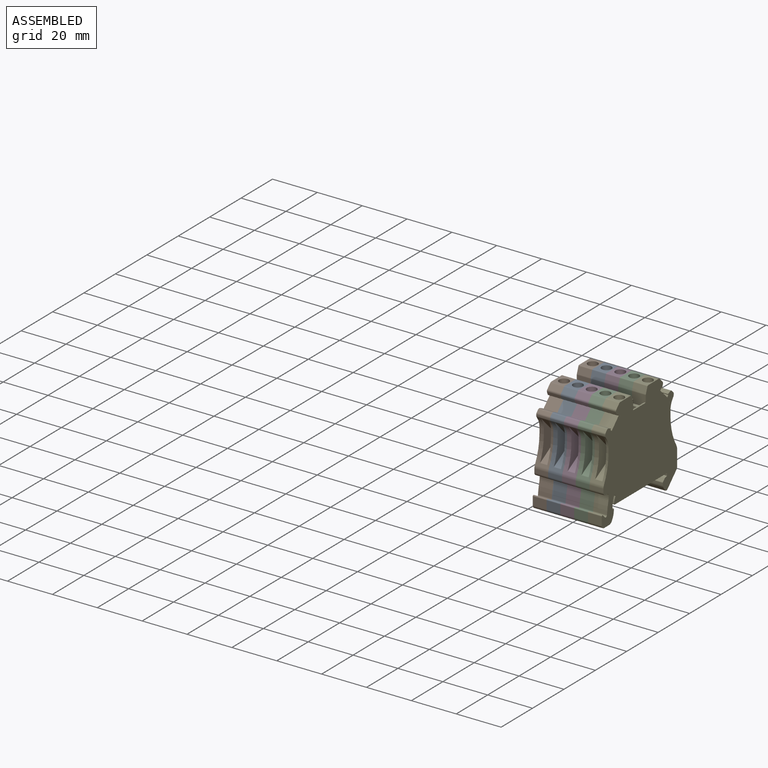
[diagram: assembled view]
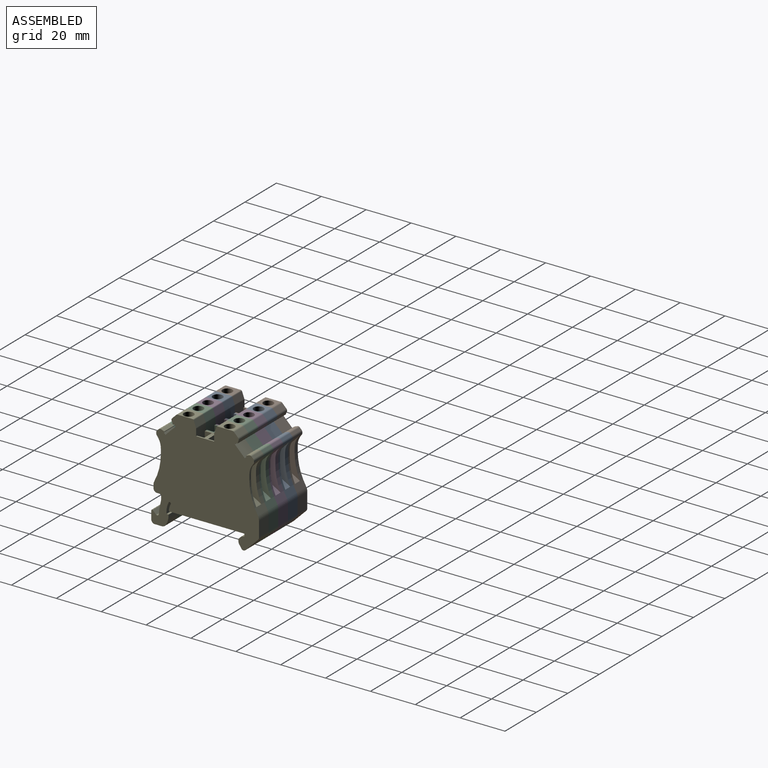
[diagram: assembled view, second angle]
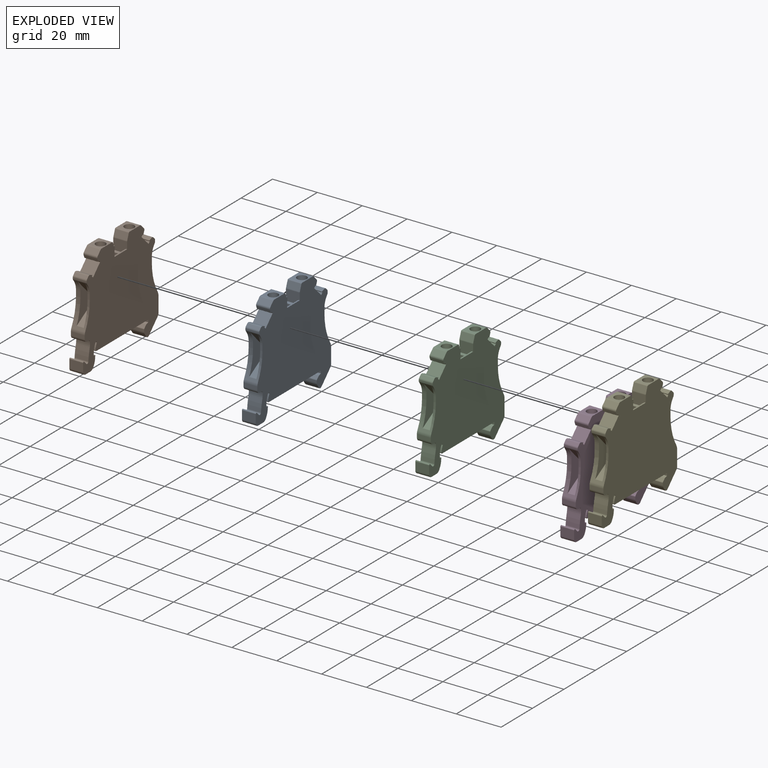
[diagram: exploded view]
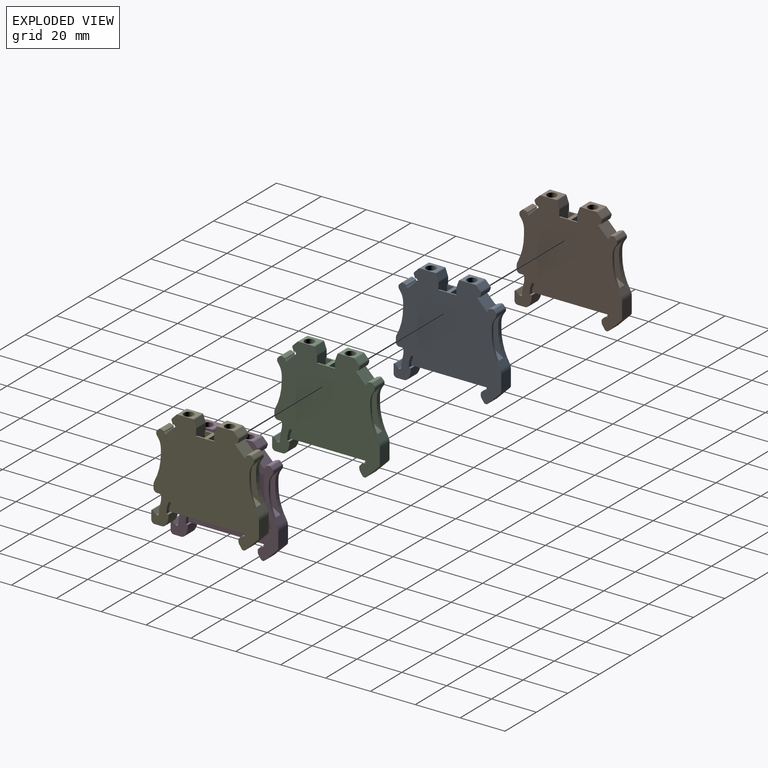
[diagram: exploded view, second angle]
ASSEMBLY  parts=5 mates=4
PART A: 201 faces, bbox 6.2x48x46.9 mm
  f0: plane 2.72x2.72mm, normal (0,0,1), area 3.6mm2, adj f8,f198,f199
  f1: torus R=1.75mm, axis (0,0,1), area 0mm2, adj f2,f5,f196
  f2: torus R=1.75mm, axis (0,0,1), area 0.8mm2, adj f1,f3,f4,f6
  f3: plane 2.72x2.72mm, normal (0,0,1), area 3.6mm2, adj f2,f4,f6
  f4: torus R=1.75mm, axis (0,0,1), area 0.8mm2, adj f2,f3,f5,f6
  f5: torus R=1.75mm, axis (0,0,1), area 0mm2, adj f1,f4,f6,f9
  f6: plane 2.73x2.73mm, normal (-0.71,-0.71,0), area 3.8mm2, adj f2,f3,f4,f5,f7,f9,f196
  f7: plane 3.15x3.15mm, normal (0,0,1), area 2.7mm2, adj f6,f8,f9,f196
  f8: plane 2.73x2.73mm, normal (0.71,0.71,0), area 3.8mm2, adj f0,f7,f9,f196,f198,f199,f200
  f9: cone r=1.88mm half-angle=3deg, axis (0,0,1), area 7.2mm2, adj f5,f6,f7,f8,f195,f196,f200
  f10: cylinder r=2.17mm len=9.75mm, axis (0,0,1), area 66.6mm2, adj f193,f194,f195
  f11: plane 1x0.86mm, normal (0,-0.82,-0.57), area 1.1mm2, adj f12,f176,f183,f188
  f12: cylinder r=7mm len=4.02mm, axis (-1,0,0), area 4.3mm2, adj f11,f176,f188,f189
  f13: plane 2.74x0.49mm, normal (0,0.87,0.5), area 1mm2, adj f18,f19,f20,f21,f25,f30
  f14: plane 1.6x0.25mm, normal (1,0,0), area 0.4mm2, adj f15,f18,f19,f23
  f15: cylinder r=0.2mm len=0.25mm, axis (0,0,-1), area 0.1mm2, adj f14,f16,f17,f18,f23
  f16: plane 1.9x0.25mm, normal (0,-1,0), area 0.5mm2, adj f15,f17,f23,f24
  f17: plane 2.74x0.49mm, normal (0,-0.87,0.5), area 1mm2, adj f15,f16,f18,f24,f25,f30
  f18: plane 2.44x0.49mm, normal (0.87,0,0.5), area 0.9mm2, adj f13,f14,f15,f17,f19,f30
  f19: cylinder r=0.2mm len=0.25mm, axis (0,0,1), area 0.1mm2, adj f13,f14,f18,f20,f23
  f20: plane 1.9x0.25mm, normal (0,1,0), area 0.5mm2, adj f13,f19,f21,f23
  f21: cylinder r=0.2mm len=0.25mm, axis (0,0,-1), area 0.1mm2, adj f13,f20,f22,f23,f25
  f22: plane 1.6x0.25mm, normal (-1,0,0), area 0.4mm2, adj f21,f23,f24,f25
  f23: plane 2.3x2mm, normal (0,0,1), area 4.6mm2, adj f14,f15,f16,f19,f20,f21,f22,f24
  f24: cylinder r=0.2mm len=0.25mm, axis (0,0,1), area 0.1mm2, adj f16,f17,f22,f23,f25
  f25: plane 2.44x0.49mm, normal (-0.87,0,0.5), area 0.9mm2, adj f13,f17,f21,f22,f24,f30
  f26: plane 12.25x3.15mm, normal (1,0,0), area 38.6mm2, adj f27,f28,f155,f156
  f27: plane 12.25x4.85mm, normal (0,-1,0), area 56.6mm2, adj f26,f28,f29,f30,f31,f155
  f28: plane 3.15x0.1mm, normal (0,0,1), area 0.3mm2, adj f26,f27,f29,f156
  f29: plane 3.15x0.6mm, normal (-1,0,0), area 1.9mm2, adj f27,f28,f30,f156
  f30: plane 4.75x3.15mm, normal (0,0,1), area 8.5mm2, adj f13,f17,f18,f25,f27,f29,f31,f156
  f31: plane 11.65x3.15mm, normal (-1,0,0), area 36.7mm2, adj f27,f30,f155,f156
  f32: plane 2.72x2.72mm, normal (0,0,1), area 3.6mm2, adj f40,f42,f43
  f33: torus R=1.75mm, axis (0,0,1), area 0mm2, adj f34,f37,f46
  f34: torus R=1.75mm, axis (0,0,1), area 0.8mm2, adj f33,f35,f36,f38
  f35: plane 2.72x2.72mm, normal (0,0,1), area 3.6mm2, adj f34,f36,f38
  f36: torus R=1.75mm, axis (0,0,1), area 0.8mm2, adj f34,f35,f37,f38
  f37: torus R=1.75mm, axis (0,0,1), area 0mm2, adj f33,f36,f38,f45
  f38: plane 2.73x2.73mm, normal (-0.71,-0.71,0), area 3.8mm2, adj f34,f35,f36,f37,f39,f45,f46
  f39: plane 3.15x3.15mm, normal (0,0,1), area 2.7mm2, adj f38,f40,f45,f46
  f40: plane 2.73x2.73mm, normal (0.71,0.71,0), area 3.8mm2, adj f32,f39,f42,f43,f44,f45,f46
  f41: torus R=1.75mm, axis (0,0,1), area 0mm2, adj f42,f44,f46
  f42: torus R=1.75mm, axis (0,0,1), area 0.8mm2, adj f32,f40,f41,f43
  f43: torus R=1.75mm, axis (0,0,1), area 0.8mm2, adj f32,f40,f42,f44
  f44: torus R=1.75mm, axis (0,0,1), area 0mm2, adj f40,f41,f43,f45
  f45: cone r=1.88mm half-angle=3deg, axis (0,0,1), area 7.2mm2, adj f37,f38,f39,f40,f44,f46,f47
  f46: cone r=1.88mm half-angle=3deg, axis (0,0,1), area 7.2mm2, adj f33,f38,f39,f40,f41,f45,f47
  f47: plane 4.35x4.35mm, normal (0,0,1), area 3.7mm2, adj f45,f46,f48,f49
  f48: cylinder r=2.17mm len=10.85mm, axis (0,0,1), area 74.1mm2, adj f47,f49,f130
  f49: cylinder r=2.17mm len=10.85mm, axis (0,0,1), area 74.1mm2, adj f47,f48,f130
  f50: cylinder r=7mm len=4.02mm, axis (-1,0,0), area 8.3mm2, adj f51,f107,f108,f192
  f51: plane 2.37x1.95mm, normal (0,1,0), area 4.6mm2, adj f50,f106,f107,f192
  f52: plane 1x0.86mm, normal (0,0.82,-0.57), area 1.1mm2, adj f56,f57,f109,f176
  f53: plane 8.05x4.69mm, normal (0,0.5,0.86), area 29.8mm2, adj f54,f56,f106,f107
  f54: plane 5.4x3.2mm, normal (0,1,0), area 17.3mm2, adj f53,f55,f56,f107
  f55: plane 7.63x7.45mm, normal (0,0.72,-0.7), area 34.1mm2, adj f54,f56,f107,f109
  f56: plane 17.84x8.05mm, normal (-1,0,0), area 64.4mm2, adj f52,f53,f54,f55,f57,f58,f106,f109
  f57: cylinder r=7mm len=4.02mm, axis (-1,0,0), area 4.3mm2, adj f52,f56,f58,f176
  f58: plane 2.37x1mm, normal (0,1,0), area 2.4mm2, adj f56,f57,f106,f176
  f59: cylinder r=3mm len=6.15mm, axis (1,0,0), area 6.7mm2, adj f60,f176,f190,f192
  f60: cylinder r=3mm len=6.15mm, axis (1,0,0), area 2.3mm2, adj f59,f61,f176,f192
  f61: plane 6.15x1.51mm, normal (0,-1,0), area 9.3mm2, adj f60,f62,f176,f192
  f62: cylinder r=1.5mm len=6.15mm, axis (-1,0,0), area 14.5mm2, adj f61,f63,f176,f192
  f63: plane 6.15x1.15mm, normal (0,0,-1), area 7.1mm2, adj f62,f64,f176,f192
  f64: cylinder r=0.7mm len=6.15mm, axis (-1,0,0), area 6.2mm2, adj f63,f65,f176,f192
  f65: cylinder r=7.5mm len=6.15mm, axis (1,0,0), area 5.6mm2, adj f64,f66,f176,f192
  f66: cylinder r=7.5mm len=6.15mm, axis (1,0,0), area 11.4mm2, adj f65,f67,f176,f192
  f67: cylinder r=32.1mm len=6.15mm, axis (1,0,0), area 31mm2, adj f66,f68,f176,f192
  f68: cylinder r=0.75mm len=6.15mm, axis (1,0,0), area 0.1mm2, adj f67,f69,f176,f192
  f69: cylinder r=0.75mm len=6.15mm, axis (1,0,0), area 10.3mm2, adj f68,f70,f176,f192
  f70: plane 6.15x1.37mm, normal (0,0.71,0.71), area 11.9mm2, adj f69,f71,f176,f192
  f71: cylinder r=0.4mm len=6.15mm, axis (1,0,0), area 5.8mm2, adj f70,f72,f176,f192
  f72: plane 6.15x3.66mm, normal (0,-1,0), area 22.5mm2, adj f71,f73,f176,f192
  f73: cylinder r=1.5mm len=6.15mm, axis (-1,0,0), area 14.5mm2, adj f72,f74,f176,f192
  f74: plane 6.15x3.21mm, normal (0,0,-1), area 19.7mm2, adj f73,f75,f176,f192
  f75: cylinder r=2mm len=6.15mm, axis (1,0,0), area 11.7mm2, adj f74,f76,f176,f192
  f76: cylinder r=9.5mm len=6.15mm, axis (1,0,0), area 2.6mm2, adj f75,f77,f176,f192
  f77: cylinder r=7mm len=6.15mm, axis (1,0,0), area 24.7mm2, adj f76,f78,f176,f192
  f78: plane 6.15x0.39mm, normal (0,1,0), area 2.4mm2, adj f77,f79,f176,f192
  f79: cylinder r=0.15mm len=6.15mm, axis (1,0,0), area 1.5mm2, adj f78,f80,f176,f192
  f80: plane 6.15x0.52mm, normal (0,-0.09,1), area 3.2mm2, adj f79,f81,f176,f192
  f81: cylinder r=0.2mm len=6.15mm, axis (1,0,0), area 2mm2, adj f80,f82,f176,f192
  f82: plane 6.15x0.86mm, normal (0,1,0), area 5.3mm2, adj f81,f83,f176,f192
  f83: cylinder r=8.3mm len=6.15mm, axis (1,0,0), area 24.9mm2, adj f82,f84,f176,f192
  f84: cylinder r=0.5mm len=6.15mm, axis (1,0,0), area 8.2mm2, adj f83,f85,f176,f192
  f85: cylinder r=0.5mm len=6.15mm, axis (1,0,0), area 1.5mm2, adj f84,f86,f176,f192
  f86: cylinder r=7.3mm len=6.15mm, axis (1,0,0), area 16.6mm2, adj f85,f87,f176,f192
  f87: cylinder r=0.5mm len=6.15mm, axis (1,0,0), area 0.4mm2, adj f86,f88,f176,f192
  f88: cylinder r=0.5mm len=6.15mm, axis (1,0,0), area 4.8mm2, adj f87,f89,f176,f192
  f89: plane 33.15x6.15mm, normal (0,0,-1), area 203.9mm2, adj f88,f90,f176,f192
  f90: plane 6.15x1.1mm, normal (0,-1,0), area 6.8mm2, adj f89,f91,f176,f192
  f91: plane 6.15x1.17mm, normal (0,-0.26,0.97), area 7.4mm2, adj f90,f92,f176,f192
  f92: cylinder r=0.5mm len=6.15mm, axis (1,0,0), area 1.6mm2, adj f91,f93,f176,f192
  f93: plane 6.15x1.11mm, normal (0,-0.71,0.71), area 9.7mm2, adj f92,f94,f176,f192
  f94: cylinder r=0.5mm len=6.15mm, axis (-1,0,0), area 2.4mm2, adj f93,f95,f176,f192
  f95: plane 6.15x0.81mm, normal (0,-1,0), area 5mm2, adj f94,f96,f176,f192
  f96: cylinder r=2mm len=6.15mm, axis (-1,0,0), area 7.5mm2, adj f95,f97,f176,f192
  f97: plane 6.15x1.46mm, normal (0,-0.82,-0.57), area 10.9mm2, adj f96,f98,f176,f192
  f98: cylinder r=1mm len=6.15mm, axis (1,0,0), area 5.9mm2, adj f97,f99,f176,f192
  f99: plane 6.15x0.13mm, normal (0,0,-1), area 0.8mm2, adj f98,f100,f176,f192
  f100: cylinder r=1mm len=6.15mm, axis (-1,0,0), area 4.8mm2, adj f99,f101,f176,f192
  f101: plane 6.15x5.67mm, normal (0,0.71,-0.71), area 49.3mm2, adj f100,f102,f176,f192
  f102: cylinder r=1.5mm len=6.15mm, axis (1,0,0), area 6.1mm2, adj f101,f103,f176,f192
  f103: cylinder r=1.5mm len=6.15mm, axis (1,0,0), area 1.1mm2, adj f102,f104,f176,f192
  f104: plane 6.81x6.15mm, normal (0,1,0), area 41.9mm2, adj f103,f105,f176,f192
  f105: cylinder r=4mm len=6.15mm, axis (1,0,0), area 13.5mm2, adj f104,f106,f176,f192
  f106: cylinder r=25mm len=13.03mm, axis (-1,0,0), area 49.3mm2, adj f51,f53,f56,f58,f105,f107,f176,f192
  f107: plane 17.84x8.05mm, normal (1,0,0), area 64.4mm2, adj f50,f51,f53,f54,f55,f106,f108,f109
  f108: plane 1.95x0.86mm, normal (0,0.82,-0.57), area 2.1mm2, adj f50,f107,f109,f192
  f109: cylinder r=1mm len=6.15mm, axis (1,0,0), area 4.3mm2, adj f52,f55,f56,f107,f108,f110,f176,f192
  f110: plane 6.15x0.47mm, normal (0,1,0), area 2.9mm2, adj f109,f111,f176,f192
  f111: cylinder r=1mm len=6.15mm, axis (-1,0,0), area 0.8mm2, adj f110,f112,f176,f192
  f112: cylinder r=1mm len=6.15mm, axis (-1,0,0), area 4.1mm2, adj f111,f113,f176,f192
  f113: plane 6.15x0.84mm, normal (0,0.71,0.71), area 7.3mm2, adj f112,f114,f176,f192
  f114: cylinder r=1mm len=6.15mm, axis (-1,0,0), area 7.1mm2, adj f113,f115,f176,f192
  f115: plane 6.15x1.29mm, normal (0,-0.36,0.93), area 8.5mm2, adj f114,f116,f176,f192
  f116: cylinder r=0.17mm len=6.15mm, axis (1,0,0), area 0.4mm2, adj f115,f117,f176,f192
  f117: cylinder r=0.17mm len=6.15mm, axis (1,0,0), area 1.6mm2, adj f116,f118,f176,f192
  f118: plane 6.15x0.19mm, normal (0,-0.71,-0.71), area 1.6mm2, adj f117,f119,f176,f192
  f119: plane 6.15x0.76mm, normal (0,-0.71,0.71), area 6.6mm2, adj f118,f120,f176,f192
  f120: plane 6.15x4.47mm, normal (0,0.71,0.71), area 38.9mm2, adj f119,f121,f176,f192
  f121: plane 6.15x0.76mm, normal (0,0.71,-0.71), area 6.6mm2, adj f120,f122,f176,f192
  f122: plane 6.15x0.19mm, normal (0,-0.71,-0.71), area 1.6mm2, adj f121,f123,f176,f192
  f123: cylinder r=0.17mm len=6.15mm, axis (1,0,0), area 1.6mm2, adj f122,f124,f176,f192
  f124: cylinder r=0.17mm len=6.15mm, axis (1,0,0), area 0.4mm2, adj f123,f125,f176,f192
  f125: plane 6.15x1.29mm, normal (0,0.93,-0.36), area 8.5mm2, adj f124,f126,f176,f192
  f126: cylinder r=1mm len=6.15mm, axis (1,0,0), area 3mm2, adj f125,f127,f176,f192
  f127: cylinder r=1mm len=6.15mm, axis (1,0,0), area 4.1mm2, adj f126,f128,f176,f192
  f128: plane 6.15x1.82mm, normal (0,0.71,0.71), area 15.8mm2, adj f127,f129,f176,f192
  f129: cylinder r=1mm len=6.15mm, axis (-1,0,0), area 4.8mm2, adj f128,f130,f176,f192
  f130: plane 6.64x6.15mm, normal (0,0,1), area 25.9mm2, adj f48,f49,f129,f131,f176,f192
  f131: cylinder r=0.5mm len=6.15mm, axis (1,0,0), area 3.8mm2, adj f130,f132,f176,f192
  f132: plane 6.15x2.8mm, normal (0,-0.94,0.34), area 18.3mm2, adj f131,f133,f176,f192
  f133: cylinder r=1mm len=6.15mm, axis (1,0,0), area 2.1mm2, adj f132,f154,f176,f192
  f134: plane 12.25x3.15mm, normal (1,0,0), area 38.6mm2, adj f152,f153,f154,f155
  f135: plane 1.9x0.25mm, normal (0,-1,0), area 0.5mm2, adj f136,f143,f144,f145
  f136: cylinder r=0.2mm len=0.25mm, axis (0,0,-1), area 0.1mm2, adj f135,f137,f138,f143,f145
  f137: plane 2.44x0.49mm, normal (-0.87,0,0.5), area 0.9mm2, adj f136,f138,f139,f145,f147,f150
  f138: plane 1.6x0.25mm, normal (-1,0,0), area 0.4mm2, adj f136,f137,f139,f143
  f139: cylinder r=0.2mm len=0.25mm, axis (0,0,1), area 0.1mm2, adj f137,f138,f140,f143,f147
  f140: plane 1.9x0.25mm, normal (0,1,0), area 0.5mm2, adj f139,f141,f143,f147
  f141: cylinder r=0.2mm len=0.25mm, axis (0,0,1), area 0.1mm2, adj f140,f142,f143,f146,f147
  f142: plane 1.6x0.25mm, normal (1,0,0), area 0.4mm2, adj f141,f143,f144,f146
  f143: plane 2.3x2mm, normal (0,0,1), area 4.6mm2, adj f135,f136,f138,f139,f140,f141,f142,f144
  f144: cylinder r=0.2mm len=0.25mm, axis (0,0,1), area 0.1mm2, adj f135,f142,f143,f145,f146
  f145: plane 2.74x0.49mm, normal (0,-0.87,0.5), area 1mm2, adj f135,f136,f137,f144,f146,f150
  f146: plane 2.44x0.49mm, normal (0.87,0,0.5), area 0.9mm2, adj f141,f142,f144,f145,f147,f150
  f147: plane 2.74x0.49mm, normal (0,0.87,0.5), area 1mm2, adj f137,f139,f140,f141,f146,f150
  f148: plane 11.65x3.15mm, normal (-1,0,0), area 36.7mm2, adj f150,f152,f154,f155
  f149: cylinder r=0.5mm len=0.6mm, axis (0,0,1), area 0mm2, adj f150,f151,f153,f154
  f150: plane 4.75x3.15mm, normal (0,0,1), area 8.5mm2, adj f137,f145,f146,f147,f148,f149,f151,f152
  f151: plane 3.09x0.6mm, normal (-1,0,0), area 1.9mm2, adj f149,f150,f152,f153
  f152: plane 12.25x4.85mm, normal (0,1,0), area 56.6mm2, adj f134,f148,f150,f151,f153,f155
  f153: plane 3.15x0.1mm, normal (0,0,1), area 0.3mm2, adj f134,f149,f151,f152,f154
  f154: plane 15.28x6.15mm, normal (0,-1,0), area 75.2mm2, adj f133,f134,f148,f149,f150,f153,f155,f176
  f155: plane 8x6.15mm, normal (0,0,1), area 18.6mm2, adj f26,f27,f31,f134,f148,f152,f154,f156
  f156: plane 15.28x6.15mm, normal (0,1,0), area 75.2mm2, adj f26,f28,f29,f30,f31,f155,f157,f176
  f157: cylinder r=1mm len=6.15mm, axis (1,0,0), area 2.1mm2, adj f156,f158,f176,f192
  f158: plane 6.15x2.8mm, normal (0,0.94,0.34), area 18.3mm2, adj f157,f159,f176,f192
  f159: cylinder r=0.5mm len=6.15mm, axis (1,0,0), area 3.8mm2, adj f158,f176,f192,f193
  f160: cylinder r=1mm len=6.15mm, axis (-1,0,0), area 4.8mm2, adj f161,f176,f192,f193
  f161: plane 6.15x1.82mm, normal (0,-0.71,0.71), area 15.8mm2, adj f160,f162,f176,f192
  f162: cylinder r=1mm len=6.15mm, axis (1,0,0), area 4.1mm2, adj f161,f163,f176,f192
  f163: cylinder r=1mm len=6.15mm, axis (1,0,0), area 3mm2, adj f162,f164,f176,f192
  f164: plane 6.15x1.29mm, normal (0,-0.93,-0.36), area 8.5mm2, adj f163,f165,f176,f192
  f165: cylinder r=0.17mm len=6.15mm, axis (1,0,0), area 0.4mm2, adj f164,f166,f176,f192
  f166: cylinder r=0.17mm len=6.15mm, axis (1,0,0), area 1.6mm2, adj f165,f167,f176,f192
  f167: plane 6.15x0.19mm, normal (0,0.71,-0.71), area 1.6mm2, adj f166,f168,f176,f192
  f168: plane 6.15x0.76mm, normal (0,-0.71,-0.71), area 6.6mm2, adj f167,f169,f176,f192
  f169: plane 6.15x4.47mm, normal (0,-0.71,0.71), area 38.9mm2, adj f168,f170,f176,f192
  f170: plane 6.15x0.76mm, normal (0,0.71,0.71), area 6.6mm2, adj f169,f171,f176,f192
  f171: plane 6.15x0.19mm, normal (0,0.71,-0.71), area 1.6mm2, adj f170,f172,f176,f192
  f172: cylinder r=0.17mm len=6.15mm, axis (1,0,0), area 1.6mm2, adj f171,f173,f176,f192
  f173: cylinder r=0.17mm len=6.15mm, axis (1,0,0), area 0.4mm2, adj f172,f174,f176,f192
  f174: plane 6.15x1.29mm, normal (0,0.36,0.93), area 8.5mm2, adj f173,f175,f176,f192
  f175: cylinder r=1mm len=6.15mm, axis (-1,0,0), area 7.1mm2, adj f174,f176,f177,f192
  f176: plane 48x46.85mm, normal (1,0,0), area 1599.4mm2, adj f11,f12,f52,f57,f58,f59,f60,f61
  f177: plane 6.15x0.84mm, normal (0,-0.71,0.71), area 7.3mm2, adj f175,f176,f178,f192
  f178: cylinder r=1mm len=6.15mm, axis (-1,0,0), area 4.1mm2, adj f176,f177,f179,f192
  f179: cylinder r=1mm len=6.15mm, axis (-1,0,0), area 0.8mm2, adj f176,f178,f180,f192
  f180: plane 6.15x0.47mm, normal (0,-1,0), area 2.9mm2, adj f176,f179,f183,f192
  f181: cylinder r=7mm len=4.02mm, axis (-1,0,0), area 8.3mm2, adj f182,f186,f191,f192
  f182: plane 1.95x0.86mm, normal (0,-0.82,-0.57), area 2.1mm2, adj f181,f183,f186,f192
  f183: cylinder r=1mm len=6.15mm, axis (1,0,0), area 4.3mm2, adj f11,f176,f180,f182,f185,f186,f188,f192
  f184: plane 5.4x3.2mm, normal (0,-1,0), area 17.3mm2, adj f185,f186,f187,f188
  f185: plane 7.63x7.45mm, normal (0,-0.72,-0.7), area 34.1mm2, adj f183,f184,f186,f188
  f186: plane 17.84x8.05mm, normal (1,0,0), area 64.4mm2, adj f181,f182,f183,f184,f185,f187,f190,f191
  f187: plane 8.05x4.69mm, normal (0,-0.5,0.86), area 29.8mm2, adj f184,f186,f188,f190
  f188: plane 17.84x8.05mm, normal (-1,0,0), area 64.4mm2, adj f11,f12,f183,f184,f185,f187,f189,f190
  f189: plane 2.37x1mm, normal (0,-1,0), area 2.4mm2, adj f12,f176,f188,f190
  f190: cylinder r=25mm len=11.69mm, axis (1,0,0), area 39.8mm2, adj f59,f176,f186,f187,f188,f189,f191,f192
  f191: plane 2.37x1.95mm, normal (0,-1,0), area 4.6mm2, adj f181,f186,f190,f192
  f192: plane 48x46.85mm, normal (-1,0,0), area 1599.4mm2, adj f50,f51,f59,f60,f61,f62,f63,f64
  f193: plane 6.64x6.15mm, normal (0,0,1), area 25.9mm2, adj f10,f159,f160,f176,f192,f194
  f194: cylinder r=2.17mm len=9.75mm, axis (0,0,1), area 66.6mm2, adj f10,f193,f195
  f195: plane 4.35x4.35mm, normal (0,0,1), area 3.7mm2, adj f9,f10,f194,f196
  f196: cone r=1.88mm half-angle=3deg, axis (0,0,1), area 7.2mm2, adj f1,f6,f7,f8,f9,f195,f197
  f197: torus R=1.75mm, axis (0,0,1), area 0mm2, adj f196,f198,f200
  f198: torus R=1.75mm, axis (0,0,1), area 0.8mm2, adj f0,f8,f197,f199
  f199: torus R=1.75mm, axis (0,0,1), area 0.8mm2, adj f0,f8,f198,f200
  f200: torus R=1.75mm, axis (0,0,1), area 0mm2, adj f8,f9,f197,f199
PART B: same geometry as A
PART C: same geometry as A
PART D: same geometry as A
PART E: same geometry as A
PLACE A t=(-34.35,-22.76,11.62)mm
PLACE B t=(-40.5,-22.76,11.62)mm
PLACE C t=(-22.05,-22.76,11.62)mm
PLACE D t=(-28.2,-22.76,11.62)mm
PLACE E t=(-15.9,-22.76,11.62)mm
MATE fastened E.f192 <-> C.f176  axis (-1,0,0) through (-21.7,7.77,21.74)mm
MATE fastened D.f192 <-> A.f176  axis (-1,0,0) through (-34,7.77,21.74)mm
MATE fastened A.f192 <-> B.f176  axis (-1,0,0) through (-40.15,7.77,21.74)mm
MATE fastened C.f192 <-> D.f176  axis (-1,0,0) through (-27.85,7.77,21.74)mm
